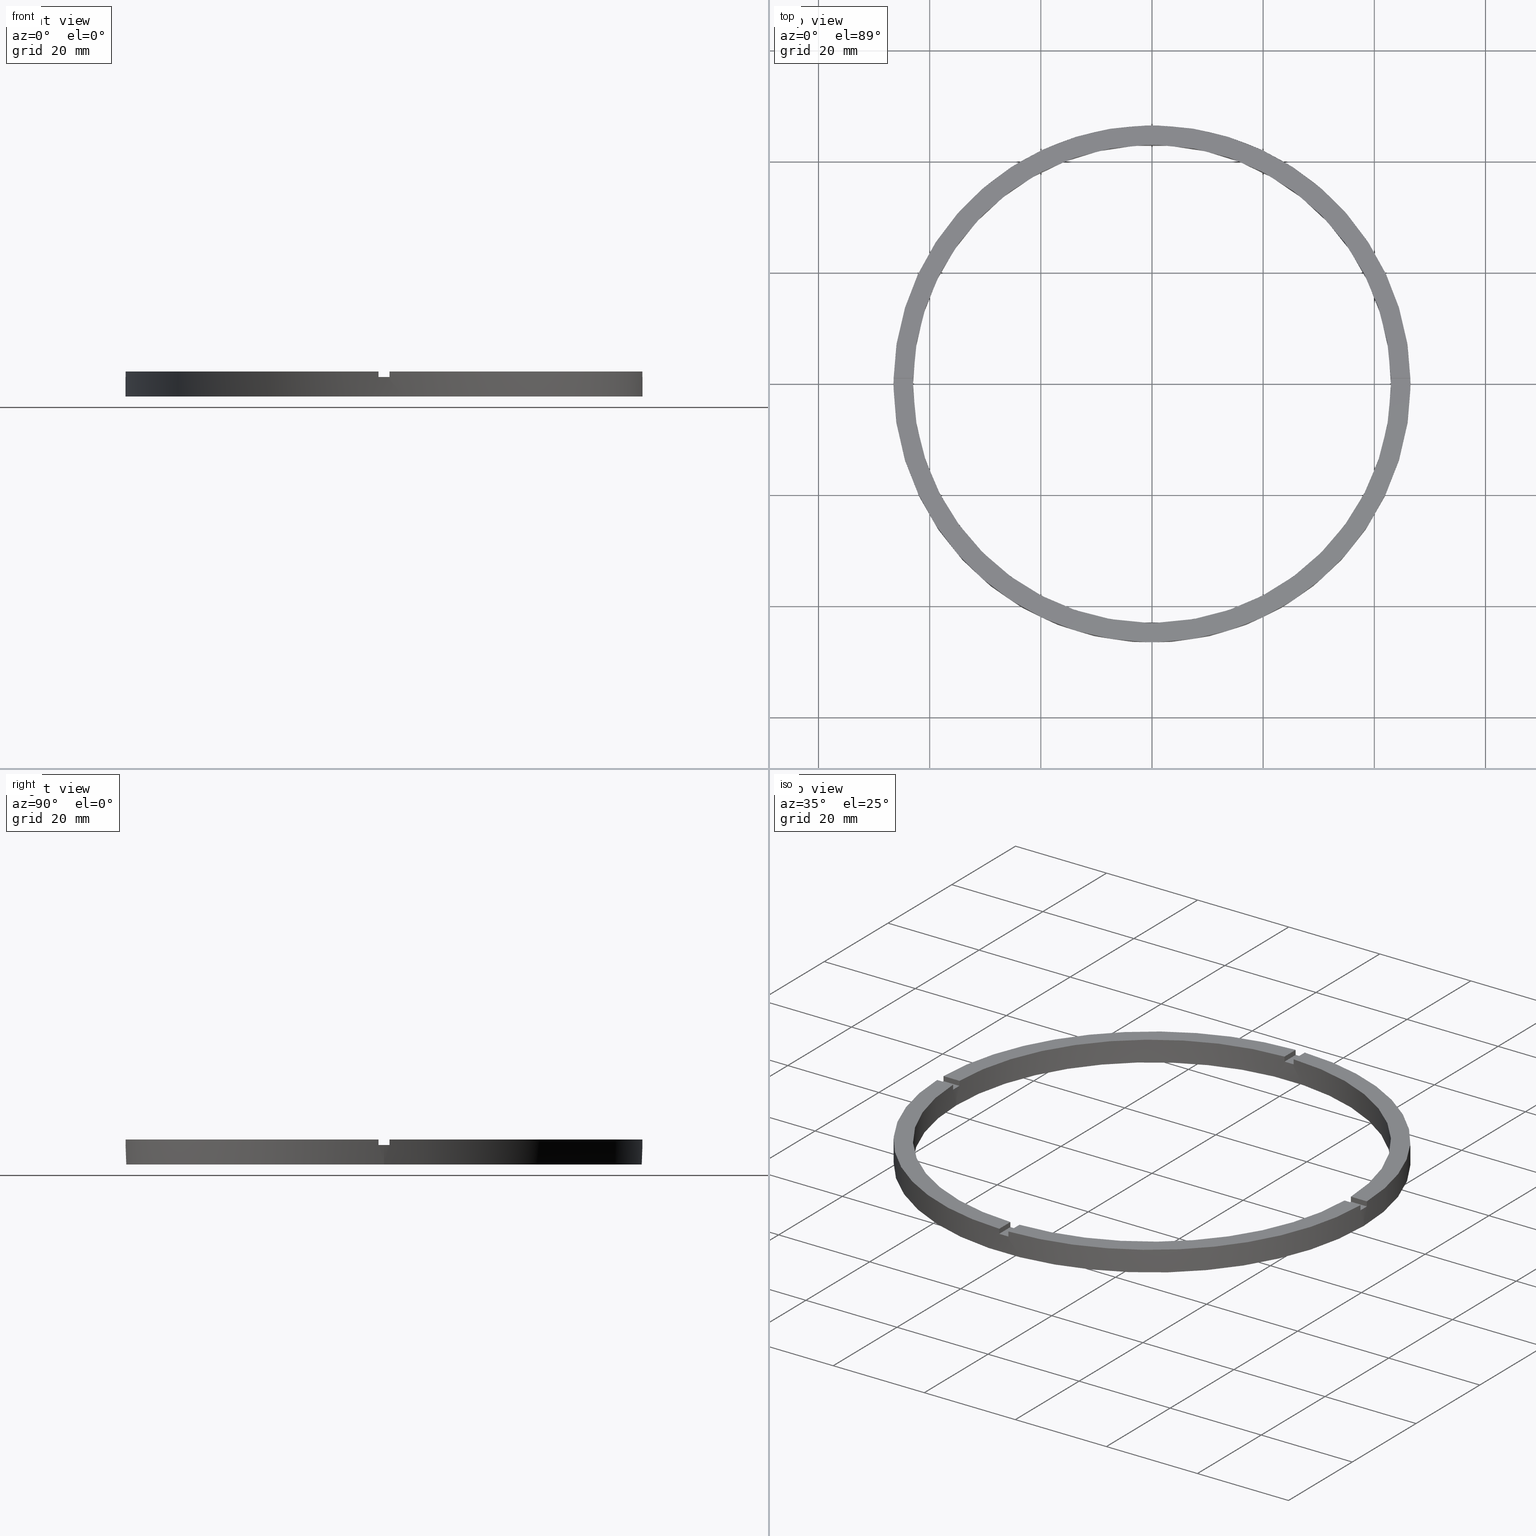
[diagram: canonical four-view strip — front | top / right | iso, engineering-drawing reading convention]
A machine part, canonical four-view strip (front | top / right | iso — engineering-drawing reading convention). The complete STEP part file that produces these views, byte-faithful:
ISO-10303-21;
HEADER;
FILE_DESCRIPTION (( 'STEP AP203' ),
    '1' );
FILE_NAME ('514191.step',
    '2024-12-26T02:46:27',
    ( 'MSI' ),
    ( '' ),
    'SwSTEP 2.0',
    'SolidWorks 2020',
    '' );
FILE_SCHEMA (( 'CONFIG_CONTROL_DESIGN' ));
ENDSEC;

DATA;
#1 = LINE ( 'NONE', #82, #757 ) ;
#2 = LINE ( 'NONE', #264, #262 ) ;
#3 = CC_DESIGN_APPROVAL ( #347, ( #295 ) ) ;
#4 = EDGE_CURVE ( 'NONE', #382, #200, #763, .T. ) ;
#5 = DIRECTION ( 'NONE',  ( 0.000000000000000000, 0.000000000000000000, 1.000000000000000000 ) ) ;
#6 = PERSON_AND_ORGANIZATION ( #259, #282 ) ;
#7 = AXIS2_PLACEMENT_3D ( 'NONE', #27, #577, #335 ) ;
#8 = APPROVAL_ROLE ( '' ) ;
#9 = ADVANCED_FACE ( 'NONE', ( #242 ), #267, .F. ) ;
#10 = MECHANICAL_CONTEXT ( 'NONE', #433, 'mechanical' ) ;
#11 = DATE_TIME_ROLE ( 'classification_date' ) ;
#12 = DIRECTION ( 'NONE',  ( -0.000000000000000000, -0.000000000000000000, -1.000000000000000000 ) ) ;
#13 = ADVANCED_FACE ( 'NONE', ( #239 ), #431, .F. ) ;
#14 = DIRECTION ( 'NONE',  ( -1.000000000000000000, -6.505213034913025371E-17, 0.000000000000000000 ) ) ;
#15 = PERSON_AND_ORGANIZATION ( #259, #282 ) ;
#16 = AXIS2_PLACEMENT_3D ( 'NONE', #166, #415, #495 ) ;
#17 = COORDINATED_UNIVERSAL_TIME_OFFSET ( 8, 0, .AHEAD. ) ;
#18 = APPROVAL_DATE_TIME ( #564, #347 ) ;
#19 = COORDINATED_UNIVERSAL_TIME_OFFSET ( 8, 0, .AHEAD. ) ;
#20 = EDGE_CURVE ( 'NONE', #169, #748, #2, .T. ) ;
#21 = DIRECTION ( 'NONE',  ( -0.000000000000000000, -1.000000000000000000, -0.000000000000000000 ) ) ;
#22 = EDGE_CURVE ( 'NONE', #644, #416, #246, .T. ) ;
#23 = APPROVAL_ROLE ( '' ) ;
#24 = LOCAL_TIME ( 10, 46, 27.00000000000000000, #538 ) ;
#25 = CARTESIAN_POINT ( 'NONE',  ( -1.000000000000158984, -36.50000000000017764, 3.499999999999999556 ) ) ;
#26 = CARTESIAN_POINT ( 'NONE',  ( -46.50000000000000000, 0.000000000000000000, 0.000000000000000000 ) ) ;
#27 = CARTESIAN_POINT ( 'NONE',  ( 0.000000000000000000, 0.000000000000000000, 3.499999999999999556 ) ) ;
#28 = LOCAL_TIME ( 10, 46, 27.00000000000000000, #17 ) ;
#29 = PERSON_AND_ORGANIZATION ( #259, #282 ) ;
#30 = CARTESIAN_POINT ( 'NONE',  ( -36.50000000000018474, 0.9999999999999715783, 3.499999999999999556 ) ) ;
#31 = CARTESIAN_POINT ( 'NONE',  ( 42.98837052040935447, 0.9999999999998439026, 3.499999999999999556 ) ) ;
#32 = CC_DESIGN_SECURITY_CLASSIFICATION ( #540, ( #378 ) ) ;
#33 = EDGE_CURVE ( 'NONE', #198, #627, #518, .T. ) ;
#34 = DIRECTION ( 'NONE',  ( -0.000000000000000000, -0.000000000000000000, -1.000000000000000000 ) ) ;
#35 = EDGE_CURVE ( 'NONE', #400, #198, #250, .T. ) ;
#36 = DIRECTION ( 'NONE',  ( -0.000000000000000000, -0.000000000000000000, -1.000000000000000000 ) ) ;
#37 = DIRECTION ( 'NONE',  ( 6.505213034913025371E-17, -1.000000000000000000, 0.000000000000000000 ) ) ;
#38 = PLANE ( 'NONE',  #726 ) ;
#39 = CARTESIAN_POINT ( 'NONE',  ( 0.9999999999999735767, 36.50000000000000000, 4.500000000000000000 ) ) ;
#40 = CARTESIAN_POINT ( 'NONE',  ( 46.48924606831132422, -1.000000000000155875, 3.499999999999999556 ) ) ;
#41 = DIRECTION ( 'NONE',  ( -1.000000000000000000, -6.505213034913025371E-17, -0.000000000000000000 ) ) ;
#42 = CARTESIAN_POINT ( 'NONE',  ( -46.48924606831132422, -1.000000000000030420, 4.500000000000000000 ) ) ;
#43 = AXIS2_PLACEMENT_3D ( 'NONE', #186, #611, #270 ) ;
#44 = CARTESIAN_POINT ( 'NONE',  ( -46.48924606831132422, -1.000000000000030420, 3.499999999999999556 ) ) ;
#45 = COORDINATED_UNIVERSAL_TIME_OFFSET ( 8, 0, .AHEAD. ) ;
#46 = APPROVAL_PERSON_ORGANIZATION ( #29, #668, #8 ) ;
#47 = AXIS2_PLACEMENT_3D ( 'NONE', #323, #450, #531 ) ;
#48 = LOCAL_TIME ( 10, 46, 27.00000000000000000, #45 ) ;
#49 = DIRECTION ( 'NONE',  ( -0.000000000000000000, -0.000000000000000000, -1.000000000000000000 ) ) ;
#50 = CALENDAR_DATE ( 2024, 26, 12 ) ;
#51 = EDGE_CURVE ( 'NONE', #180, #416, #496, .T. ) ;
#52 = PLANE ( 'NONE',  #586 ) ;
#53 = CARTESIAN_POINT ( 'NONE',  ( 0.000000000000000000, 0.000000000000000000, 4.500000000000000000 ) ) ;
#54 = DIRECTION ( 'NONE',  ( -1.000000000000000000, 0.000000000000000000, 0.000000000000000000 ) ) ;
#55 = DIRECTION ( 'NONE',  ( 1.000000000000000000, 0.000000000000000000, 0.000000000000000000 ) ) ;
#56 = EDGE_CURVE ( 'NONE', #400, #390, #525, .T. ) ;
#57 = EDGE_CURVE ( 'NONE', #193, #403, #524, .T. ) ;
#58 = CARTESIAN_POINT ( 'NONE',  ( 0.000000000000000000, 0.000000000000000000, 4.500000000000000000 ) ) ;
#59 = CARTESIAN_POINT ( 'NONE',  ( 46.48924606831132422, 0.9999999999998441247, 4.500000000000000000 ) ) ;
#60 = FACE_OUTER_BOUND ( 'NONE', #718, .T. ) ;
#61 = PLANE ( 'NONE',  #620 ) ;
#62 = DIRECTION ( 'NONE',  ( -0.000000000000000000, -0.000000000000000000, -1.000000000000000000 ) ) ;
#63 = CC_DESIGN_PERSON_AND_ORGANIZATION_ASSIGNMENT ( #548, #318, ( #295 ) ) ;
#64 = CARTESIAN_POINT ( 'NONE',  ( 0.000000000000000000, 0.000000000000000000, 3.499999999999999556 ) ) ;
#65 = CIRCLE ( 'NONE', #597, 46.50000000000000000 ) ;
#66 = FACE_OUTER_BOUND ( 'NONE', #675, .T. ) ;
#67 = APPROVAL_STATUS ( 'not_yet_approved' ) ;
#68 = AXIS2_PLACEMENT_3D ( 'NONE', #25, #130, #756 ) ;
#69 = CIRCLE ( 'NONE', #83, 46.50000000000000000 ) ;
#70 = VECTOR ( 'NONE', #292, 1000.000000000000000 ) ;
#71 = CARTESIAN_POINT ( 'NONE',  ( 0.9999999999999735767, 36.50000000000000000, 3.499999999999999556 ) ) ;
#72 = CIRCLE ( 'NONE', #772, 46.50000000000000000 ) ;
#73 = ADVANCED_FACE ( 'NONE', ( #263 ), #552, .F. ) ;
#74 = EDGE_CURVE ( 'NONE', #212, #748, #764, .T. ) ;
#75 = DIRECTION ( 'NONE',  ( 0.000000000000000000, 0.000000000000000000, 1.000000000000000000 ) ) ;
#76 = DIRECTION ( 'NONE',  ( 0.000000000000000000, 0.000000000000000000, 1.000000000000000000 ) ) ;
#77 = CARTESIAN_POINT ( 'NONE',  ( 0.000000000000000000, 0.000000000000000000, 0.000000000000000000 ) ) ;
#78 = EDGE_CURVE ( 'NONE', #201, #169, #519, .T. ) ;
#79 = EDGE_CURVE ( 'NONE', #622, #749, #759, .T. ) ;
#80 = DIRECTION ( 'NONE',  ( 0.000000000000000000, 0.000000000000000000, 1.000000000000000000 ) ) ;
#81 = DIRECTION ( 'NONE',  ( -1.000000000000000000, -1.951563910473907735E-16, 0.000000000000000000 ) ) ;
#82 = CARTESIAN_POINT ( 'NONE',  ( -42.98837052040935447, -1.000000000000029754, 4.500000000000000000 ) ) ;
#83 = AXIS2_PLACEMENT_3D ( 'NONE', #77, #144, #225 ) ;
#84 = EDGE_CURVE ( 'NONE', #646, #96, #511, .T. ) ;
#85 = CARTESIAN_POINT ( 'NONE',  ( 42.98837052040934736, -1.000000000000156097, 4.500000000000000000 ) ) ;
#86 = DIRECTION ( 'NONE',  ( 0.000000000000000000, 0.000000000000000000, 1.000000000000000000 ) ) ;
#87 = EDGE_CURVE ( 'NONE', #132, #108, #499, .T. ) ;
#88 = CARTESIAN_POINT ( 'NONE',  ( 0.9999999999999735767, 42.98837052040935447, 4.500000000000000000 ) ) ;
#89 = CARTESIAN_POINT ( 'NONE',  ( -1.000000000000157652, -46.48924606831132422, 4.500000000000000000 ) ) ;
#90 = DIRECTION ( 'NONE',  ( -0.000000000000000000, -1.000000000000000000, -0.000000000000000000 ) ) ;
#91 = AXIS2_PLACEMENT_3D ( 'NONE', #398, #294, #462 ) ;
#92 = ORIENTED_EDGE ( 'NONE', *, *, #562, .F. ) ;
#93 = AXIS2_PLACEMENT_3D ( 'NONE', #142, #281, #331 ) ;
#94 = VECTOR ( 'NONE', #530, 1000.000000000000000 ) ;
#95 = PLANE ( 'NONE',  #497 ) ;
#96 = VERTEX_POINT ( 'NONE', #40 ) ;
#97 = FACE_OUTER_BOUND ( 'NONE', #461, .T. ) ;
#98 = VERTEX_POINT ( 'NONE', #527 ) ;
#99 = DIRECTION ( 'NONE',  ( 0.000000000000000000, 0.000000000000000000, 1.000000000000000000 ) ) ;
#100 = EDGE_CURVE ( 'NONE', #98, #108, #1, .T. ) ;
#101 = ORIENTED_EDGE ( 'NONE', *, *, #562, .T. ) ;
#102 = DIRECTION ( 'NONE',  ( 1.951563910473907735E-16, -1.000000000000000000, 0.000000000000000000 ) ) ;
#103 = AXIS2_PLACEMENT_3D ( 'NONE', #241, #99, #760 ) ;
#104 = CARTESIAN_POINT ( 'NONE',  ( -43.00000000000000000, 0.000000000000000000, 4.500000000000000000 ) ) ;
#105 = LINE ( 'NONE', #293, #641 ) ;
#106 = ORIENTED_EDGE ( 'NONE', *, *, #437, .T. ) ;
#107 = EDGE_CURVE ( 'NONE', #149, #719, #237, .T. ) ;
#108 = VERTEX_POINT ( 'NONE', #689 ) ;
#109 = CYLINDRICAL_SURFACE ( 'NONE', #615, 46.50000000000000000 ) ;
#110 = ORIENTED_EDGE ( 'NONE', *, *, #57, .F. ) ;
#111 = ORIENTED_EDGE ( 'NONE', *, *, #407, .F. ) ;
#112 = EDGE_CURVE ( 'NONE', #96, #644, #249, .T. ) ;
#113 = LINE ( 'NONE', #155, #213 ) ;
#114 = DIRECTION ( 'NONE',  ( 1.301042606982605074E-16, -1.000000000000000000, 0.000000000000000000 ) ) ;
#115 = ORIENTED_EDGE ( 'NONE', *, *, #320, .T. ) ;
#116 = EDGE_LOOP ( 'NONE', ( #218, #405, #481, #106 ) ) ;
#117 = VERTEX_POINT ( 'NONE', #762 ) ;
#118 = FACE_OUTER_BOUND ( 'NONE', #370, .T. ) ;
#119 = ADVANCED_FACE ( 'NONE', ( #774 ), #157, .F. ) ;
#120 = ORIENTED_EDGE ( 'NONE', *, *, #84, .T. ) ;
#121 = ORIENTED_EDGE ( 'NONE', *, *, #656, .T. ) ;
#122 = CC_DESIGN_APPROVAL ( #668, ( #378 ) ) ;
#123 = DIRECTION ( 'NONE',  ( 1.000000000000000000, 0.000000000000000000, 0.000000000000000000 ) ) ;
#124 = DIRECTION ( 'NONE',  ( 0.000000000000000000, -0.000000000000000000, 1.000000000000000000 ) ) ;
#125 = ORIENTED_EDGE ( 'NONE', *, *, #197, .F. ) ;
#126 = CARTESIAN_POINT ( 'NONE',  ( -42.98837052040935447, 0.9999999999999703570, 4.500000000000000000 ) ) ;
#127 = ORIENTED_EDGE ( 'NONE', *, *, #547, .T. ) ;
#128 = CARTESIAN_POINT ( 'NONE',  ( 36.49999999999999289, 0.9999999999998434586, 3.499999999999999556 ) ) ;
#129 = EDGE_LOOP ( 'NONE', ( #356, #638, #182, #92 ) ) ;
#130 = DIRECTION ( 'NONE',  ( -1.000000000000000000, -1.301042606982605074E-16, 0.000000000000000000 ) ) ;
#131 = AXIS2_PLACEMENT_3D ( 'NONE', #585, #134, #697 ) ;
#132 = VERTEX_POINT ( 'NONE', #44 ) ;
#133 = DIRECTION ( 'NONE',  ( -0.000000000000000000, -0.000000000000000000, -1.000000000000000000 ) ) ;
#134 = DIRECTION ( 'NONE',  ( 0.000000000000000000, 0.000000000000000000, 1.000000000000000000 ) ) ;
#135 = CC_DESIGN_PERSON_AND_ORGANIZATION_ASSIGNMENT ( #15, #513, ( #534 ) ) ;
#136 = ORIENTED_EDGE ( 'NONE', *, *, #660, .T. ) ;
#137 = CARTESIAN_POINT ( 'NONE',  ( 46.48924606831132422, 0.9999999999998441247, 3.499999999999999556 ) ) ;
#138 = DIRECTION ( 'NONE',  ( -0.000000000000000000, -0.000000000000000000, -1.000000000000000000 ) ) ;
#139 = DIRECTION ( 'NONE',  ( 0.000000000000000000, 1.000000000000000000, 0.000000000000000000 ) ) ;
#140 = ORIENTED_EDGE ( 'NONE', *, *, #746, .T. ) ;
#141 = ORIENTED_EDGE ( 'NONE', *, *, #618, .T. ) ;
#142 = CARTESIAN_POINT ( 'NONE',  ( 0.000000000000000000, 0.000000000000000000, 4.500000000000000000 ) ) ;
#143 = ORIENTED_EDGE ( 'NONE', *, *, #33, .T. ) ;
#144 = DIRECTION ( 'NONE',  ( 0.000000000000000000, 0.000000000000000000, 1.000000000000000000 ) ) ;
#145 = ORIENTED_EDGE ( 'NONE', *, *, #555, .T. ) ;
#146 = DIRECTION ( 'NONE',  ( 1.000000000000000000, 0.000000000000000000, 0.000000000000000000 ) ) ;
#147 = AXIS2_PLACEMENT_3D ( 'NONE', #575, #775, #232 ) ;
#148 = ORIENTED_EDGE ( 'NONE', *, *, #245, .F. ) ;
#149 = VERTEX_POINT ( 'NONE', #517 ) ;
#150 = EDGE_CURVE ( 'NONE', #193, #382, #514, .T. ) ;
#151 = CARTESIAN_POINT ( 'NONE',  ( 0.9999999999999735767, 42.98837052040935447, 3.499999999999999556 ) ) ;
#152 = EDGE_CURVE ( 'NONE', #180, #190, #254, .T. ) ;
#153 = ORIENTED_EDGE ( 'NONE', *, *, #57, .T. ) ;
#154 = DIRECTION ( 'NONE',  ( 0.000000000000000000, 0.000000000000000000, 1.000000000000000000 ) ) ;
#155 = CARTESIAN_POINT ( 'NONE',  ( 0.9999999999998423483, -46.48924606831132422, 4.500000000000000000 ) ) ;
#156 = ORIENTED_EDGE ( 'NONE', *, *, #78, .T. ) ;
#157 = PLANE ( 'NONE',  #91 ) ;
#158 = ORIENTED_EDGE ( 'NONE', *, *, #112, .T. ) ;
#159 = ORIENTED_EDGE ( 'NONE', *, *, #248, .T. ) ;
#160 = CARTESIAN_POINT ( 'NONE',  ( 0.000000000000000000, 0.000000000000000000, 0.000000000000000000 ) ) ;
#161 = CC_DESIGN_APPROVAL ( #217, ( #540 ) ) ;
#162 = EDGE_CURVE ( 'NONE', #190, #749, #782, .T. ) ;
#163 = CARTESIAN_POINT ( 'NONE',  ( 0.000000000000000000, 0.000000000000000000, 3.499999999999999556 ) ) ;
#164 = ORIENTED_EDGE ( 'NONE', *, *, #455, .F. ) ;
#165 = LINE ( 'NONE', #526, #464 ) ;
#166 = CARTESIAN_POINT ( 'NONE',  ( 0.000000000000000000, 0.000000000000000000, 4.500000000000000000 ) ) ;
#167 = VECTOR ( 'NONE', #90, 1000.000000000000000 ) ;
#168 = CARTESIAN_POINT ( 'NONE',  ( -1.000000000000158984, -36.50000000000017764, 3.499999999999999556 ) ) ;
#169 = VERTEX_POINT ( 'NONE', #619 ) ;
#170 = VECTOR ( 'NONE', #36, 1000.000000000000000 ) ;
#171 = ORIENTED_EDGE ( 'NONE', *, *, #660, .F. ) ;
#172 = DIRECTION ( 'NONE',  ( 1.000000000000000000, 1.951563910473907735E-16, 0.000000000000000000 ) ) ;
#173 = ADVANCED_FACE ( 'NONE', ( #776, #767 ), #436, .F. ) ;
#174 = AXIS2_PLACEMENT_3D ( 'NONE', #451, #289, #469 ) ;
#175 = ORIENTED_EDGE ( 'NONE', *, *, #56, .T. ) ;
#176 = FACE_OUTER_BOUND ( 'NONE', #621, .T. ) ;
#177 = DIRECTION ( 'NONE',  ( 1.301042606982605074E-16, -1.000000000000000000, 0.000000000000000000 ) ) ;
#178 = VERTEX_POINT ( 'NONE', #211 ) ;
#179 = LINE ( 'NONE', #275, #170 ) ;
#180 = VERTEX_POINT ( 'NONE', #274 ) ;
#181 = LINE ( 'NONE', #39, #452 ) ;
#182 = ORIENTED_EDGE ( 'NONE', *, *, #547, .F. ) ;
#183 = CARTESIAN_POINT ( 'NONE',  ( 0.000000000000000000, 0.000000000000000000, 4.500000000000000000 ) ) ;
#184 = ORIENTED_EDGE ( 'NONE', *, *, #624, .F. ) ;
#185 = VECTOR ( 'NONE', #678, 1000.000000000000000 ) ;
#186 = CARTESIAN_POINT ( 'NONE',  ( 0.9999999999998411271, -36.50000000000017764, 3.499999999999999556 ) ) ;
#187 = ORIENTED_EDGE ( 'NONE', *, *, #271, .F. ) ;
#188 = EDGE_LOOP ( 'NONE', ( #223, #492, #159, #476, #224, #736, #238, #156, #203, #501, #688, #691 ) ) ;
#189 = ORIENTED_EDGE ( 'NONE', *, *, #112, .F. ) ;
#190 = VERTEX_POINT ( 'NONE', #389 ) ;
#191 = AXIS2_PLACEMENT_3D ( 'NONE', #412, #493, #404 ) ;
#192 = DIRECTION ( 'NONE',  ( 0.000000000000000000, 0.000000000000000000, 1.000000000000000000 ) ) ;
#193 = VERTEX_POINT ( 'NONE', #228 ) ;
#194 = CIRCLE ( 'NONE', #174, 46.50000000000000000 ) ;
#195 = ORIENTED_EDGE ( 'NONE', *, *, #283, .T. ) ;
#196 = EDGE_LOOP ( 'NONE', ( #426, #229, #233, #421 ) ) ;
#197 = EDGE_CURVE ( 'NONE', #646, #622, #252, .T. ) ;
#198 = VERTEX_POINT ( 'NONE', #632 ) ;
#199 = VECTOR ( 'NONE', #396, 1000.000000000000000 ) ;
#200 = VERTEX_POINT ( 'NONE', #443 ) ;
#201 = VERTEX_POINT ( 'NONE', #286 ) ;
#202 = LINE ( 'NONE', #204, #185 ) ;
#203 = ORIENTED_EDGE ( 'NONE', *, *, #349, .F. ) ;
#204 = CARTESIAN_POINT ( 'NONE',  ( 46.48924606831132422, -1.000000000000155875, 4.500000000000000000 ) ) ;
#205 = CIRCLE ( 'NONE', #643, 43.00000000000000000 ) ;
#206 = ORIENTED_EDGE ( 'NONE', *, *, #197, .T. ) ;
#207 = CARTESIAN_POINT ( 'NONE',  ( 46.50000000000000000, 5.694607616035192278E-15, 4.500000000000000000 ) ) ;
#208 = FACE_OUTER_BOUND ( 'NONE', #116, .T. ) ;
#209 = DIRECTION ( 'NONE',  ( -0.000000000000000000, 0.000000000000000000, 1.000000000000000000 ) ) ;
#210 = ORIENTED_EDGE ( 'NONE', *, *, #107, .T. ) ;
#211 = CARTESIAN_POINT ( 'NONE',  ( 0.9999999999999735767, 46.48924606831132422, 3.499999999999999556 ) ) ;
#212 = VERTEX_POINT ( 'NONE', #151 ) ;
#213 = VECTOR ( 'NONE', #133, 1000.000000000000000 ) ;
#214 = ORIENTED_EDGE ( 'NONE', *, *, #616, .T. ) ;
#215 = PLANE ( 'NONE',  #351 ) ;
#216 = CYLINDRICAL_SURFACE ( 'NONE', #47, 43.00000000000000000 ) ;
#217 = APPROVAL ( #427, 'δָ��' ) ;
#218 = ORIENTED_EDGE ( 'NONE', *, *, #349, .T. ) ;
#219 = ORIENTED_EDGE ( 'NONE', *, *, #283, .F. ) ;
#220 =( LENGTH_UNIT ( ) NAMED_UNIT ( * ) SI_UNIT ( .MILLI., .METRE. ) );
#221 = DIRECTION ( 'NONE',  ( 1.000000000000000000, 0.000000000000000000, 0.000000000000000000 ) ) ;
#222 = ORIENTED_EDGE ( 'NONE', *, *, #56, .F. ) ;
#223 = ORIENTED_EDGE ( 'NONE', *, *, #22, .F. ) ;
#224 = ORIENTED_EDGE ( 'NONE', *, *, #107, .F. ) ;
#225 = DIRECTION ( 'NONE',  ( 1.000000000000000000, 0.000000000000000000, 0.000000000000000000 ) ) ;
#226 = CARTESIAN_POINT ( 'NONE',  ( -1.000000000000026423, 36.50000000000000000, 4.500000000000000000 ) ) ;
#227 = EDGE_LOOP ( 'NONE', ( #214, #635, #725, #724 ) ) ;
#228 = CARTESIAN_POINT ( 'NONE',  ( -42.98837052040935447, 0.9999999999999703570, 3.499999999999999556 ) ) ;
#229 = ORIENTED_EDGE ( 'NONE', *, *, #305, .T. ) ;
#230 = ORIENTED_EDGE ( 'NONE', *, *, #579, .T. ) ;
#231 = PLANE ( 'NONE',  #316 ) ;
#232 = DIRECTION ( 'NONE',  ( -1.000000000000000000, 0.000000000000000000, 0.000000000000000000 ) ) ;
#233 = ORIENTED_EDGE ( 'NONE', *, *, #746, .F. ) ;
#234 = CARTESIAN_POINT ( 'NONE',  ( -36.50000000000018474, 0.9999999999999715783, 3.499999999999999556 ) ) ;
#235 = DIRECTION ( 'NONE',  ( -1.000000000000000000, 0.000000000000000000, 0.000000000000000000 ) ) ;
#236 = VECTOR ( 'NONE', #701, 1000.000000000000000 ) ;
#237 = CIRCLE ( 'NONE', #669, 46.50000000000000000 ) ;
#238 = ORIENTED_EDGE ( 'NONE', *, *, #305, .F. ) ;
#239 = FACE_OUTER_BOUND ( 'NONE', #129, .T. ) ;
#240 = DIRECTION ( 'NONE',  ( 0.000000000000000000, 0.000000000000000000, 1.000000000000000000 ) ) ;
#241 = CARTESIAN_POINT ( 'NONE',  ( 0.000000000000000000, 0.000000000000000000, 4.500000000000000000 ) ) ;
#242 = FACE_OUTER_BOUND ( 'NONE', #424, .T. ) ;
#243 = DIRECTION ( 'NONE',  ( -0.000000000000000000, -0.000000000000000000, -1.000000000000000000 ) ) ;
#244 = VECTOR ( 'NONE', #658, 1000.000000000000000 ) ;
#245 = EDGE_CURVE ( 'NONE', #178, #117, #509, .T. ) ;
#246 = CIRCLE ( 'NONE', #266, 46.50000000000000000 ) ;
#247 = ORIENTED_EDGE ( 'NONE', *, *, #406, .T. ) ;
#248 = EDGE_CURVE ( 'NONE', #465, #490, #778, .T. ) ;
#249 = CIRCLE ( 'NONE', #637, 46.50000000000000000 ) ;
#250 = LINE ( 'NONE', #546, #503 ) ;
#251 = ADVANCED_FACE ( 'NONE', ( #516 ), #52, .T. ) ;
#252 = CIRCLE ( 'NONE', #607, 43.00000000000000000 ) ;
#253 = VECTOR ( 'NONE', #177, 1000.000000000000000 ) ;
#254 = LINE ( 'NONE', #472, #500 ) ;
#255 = VECTOR ( 'NONE', #62, 1000.000000000000000 ) ;
#256 = LINE ( 'NONE', #702, #520 ) ;
#257 = CC_DESIGN_PERSON_AND_ORGANIZATION_ASSIGNMENT ( #313, #741, ( #378 ) ) ;
#258 = EDGE_CURVE ( 'NONE', #727, #132, #256, .T. ) ;
#259 = PERSON ( 'δָ��', 'δָ��', 'δָ��', ('δָ��'), ('δָ��'), ('δָ��') ) ;
#260 = VECTOR ( 'NONE', #154, 1000.000000000000000 ) ;
#261 = EDGE_LOOP ( 'NONE', ( #164, #429 ) ) ;
#262 = VECTOR ( 'NONE', #21, 1000.000000000000000 ) ;
#263 = FACE_OUTER_BOUND ( 'NONE', #650, .T. ) ;
#264 = CARTESIAN_POINT ( 'NONE',  ( -1.000000000000026423, 36.50000000000000000, 3.499999999999999556 ) ) ;
#265 = ORIENTED_EDGE ( 'NONE', *, *, #399, .T. ) ;
#266 = AXIS2_PLACEMENT_3D ( 'NONE', #491, #750, #321 ) ;
#267 = PLANE ( 'NONE',  #720 ) ;
#268 = AXIS2_PLACEMENT_3D ( 'NONE', #30, #695, #81 ) ;
#269 = DIRECTION ( 'NONE',  ( 0.000000000000000000, 1.000000000000000000, 0.000000000000000000 ) ) ;
#270 = DIRECTION ( 'NONE',  ( -1.301042606982605074E-16, 1.000000000000000000, 0.000000000000000000 ) ) ;
#271 = EDGE_CURVE ( 'NONE', #390, #627, #783, .T. ) ;
#272 = EDGE_CURVE ( 'NONE', #193, #149, #522, .T. ) ;
#273 = CARTESIAN_POINT ( 'NONE',  ( 43.00000000000000000, 5.265981236333618470E-15, 4.500000000000000000 ) ) ;
#274 = CARTESIAN_POINT ( 'NONE',  ( 46.48924606831132422, 0.9999999999998441247, 4.500000000000000000 ) ) ;
#275 = CARTESIAN_POINT ( 'NONE',  ( -46.50000000000000000, 0.000000000000000000, 4.500000000000000000 ) ) ;
#276 = AXIS2_PLACEMENT_3D ( 'NONE', #758, #80, #617 ) ;
#277 = DIRECTION ( 'NONE',  ( -1.301042606982605074E-16, 1.000000000000000000, -0.000000000000000000 ) ) ;
#278 = CARTESIAN_POINT ( 'NONE',  ( 0.000000000000000000, 0.000000000000000000, 4.500000000000000000 ) ) ;
#279 = CARTESIAN_POINT ( 'NONE',  ( 0.9999999999998423483, -46.48924606831132422, 4.500000000000000000 ) ) ;
#280 = APPROVAL_DATE_TIME ( #536, #217 ) ;
#281 = DIRECTION ( 'NONE',  ( 0.000000000000000000, 0.000000000000000000, 1.000000000000000000 ) ) ;
#282 = ORGANIZATION ( 'δָ��', 'δָ��', '' ) ;
#283 = EDGE_CURVE ( 'NONE', #390, #483, #587, .T. ) ;
#284 = CARTESIAN_POINT ( 'NONE',  ( 46.50000000000000000, 5.694607616035192278E-15, 0.000000000000000000 ) ) ;
#285 = CARTESIAN_POINT ( 'NONE',  ( 42.98837052040934736, -1.000000000000156097, 3.499999999999999556 ) ) ;
#286 = CARTESIAN_POINT ( 'NONE',  ( -1.000000000000026423, 46.48924606831132422, 4.500000000000000000 ) ) ;
#287 = CARTESIAN_POINT ( 'NONE',  ( 36.49999999999999289, -1.000000000000156541, 3.499999999999999556 ) ) ;
#288 = DIRECTION ( 'NONE',  ( -0.000000000000000000, -0.000000000000000000, -1.000000000000000000 ) ) ;
#289 = DIRECTION ( 'NONE',  ( 0.000000000000000000, 0.000000000000000000, 1.000000000000000000 ) ) ;
#290 = AXIS2_PLACEMENT_3D ( 'NONE', #160, #657, #343 ) ;
#291 = LOCAL_TIME ( 10, 46, 27.00000000000000000, #19 ) ;
#292 = DIRECTION ( 'NONE',  ( -1.000000000000000000, -1.951563910473907735E-16, 0.000000000000000000 ) ) ;
#293 = CARTESIAN_POINT ( 'NONE',  ( 36.49999999999999289, 0.9999999999998434586, 3.499999999999999556 ) ) ;
#294 = DIRECTION ( 'NONE',  ( -1.000000000000000000, 0.000000000000000000, 0.000000000000000000 ) ) ;
#295 = PRODUCT_DEFINITION ( 'δ֪', '', #378, #614 ) ;
#296 = CALENDAR_DATE ( 2024, 26, 12 ) ;
#297 = DIRECTION ( 'NONE',  ( 1.000000000000000000, 0.000000000000000000, -0.000000000000000000 ) ) ;
#298 = DIRECTION ( 'NONE',  ( 0.000000000000000000, 0.000000000000000000, 1.000000000000000000 ) ) ;
#299 = DIRECTION ( 'NONE',  ( -0.000000000000000000, 0.000000000000000000, 1.000000000000000000 ) ) ;
#300 = PERSON_AND_ORGANIZATION ( #259, #282 ) ;
#301 = CARTESIAN_POINT ( 'NONE',  ( 0.9999999999999735767, 42.98837052040935447, 4.500000000000000000 ) ) ;
#302 = ADVANCED_FACE ( 'NONE', ( #60 ), #61, .F. ) ;
#303 = APPROVAL_PERSON_ORGANIZATION ( #300, #347, #23 ) ;
#304 = AXIS2_PLACEMENT_3D ( 'NONE', #600, #298, #346 ) ;
#305 = EDGE_CURVE ( 'NONE', #201, #739, #578, .T. ) ;
#306 = APPROVAL_DATE_TIME ( #308, #668 ) ;
#307 = CARTESIAN_POINT ( 'NONE',  ( -42.98837052040935447, 0.9999999999999703570, 4.500000000000000000 ) ) ;
#308 = DATE_AND_TIME ( #311, #48 ) ;
#309 = EDGE_CURVE ( 'NONE', #413, #411, #336, .T. ) ;
#310 = ADVANCED_FACE ( 'NONE', ( #66 ), #317, .F. ) ;
#311 = CALENDAR_DATE ( 2024, 26, 12 ) ;
#312 = CARTESIAN_POINT ( 'NONE',  ( 0.000000000000000000, 0.000000000000000000, 4.500000000000000000 ) ) ;
#313 = PERSON_AND_ORGANIZATION ( #259, #282 ) ;
#314 = DATE_AND_TIME ( #50, #569 ) ;
#315 = DIRECTION ( 'NONE',  ( 0.000000000000000000, 0.000000000000000000, -1.000000000000000000 ) ) ;
#316 = AXIS2_PLACEMENT_3D ( 'NONE', #287, #37, #466 ) ;
#317 = CYLINDRICAL_SURFACE ( 'NONE', #692, 43.00000000000000000 ) ;
#318 = PERSON_AND_ORGANIZATION_ROLE ( 'creator' ) ;
#319 = VECTOR ( 'NONE', #243, 1000.000000000000000 ) ;
#320 = EDGE_CURVE ( 'NONE', #180, #117, #581, .T. ) ;
#321 = DIRECTION ( 'NONE',  ( 1.000000000000000000, 0.000000000000000000, 0.000000000000000000 ) ) ;
#322 = CARTESIAN_POINT ( 'NONE',  ( 0.000000000000000000, 0.000000000000000000, 3.499999999999999556 ) ) ;
#323 = CARTESIAN_POINT ( 'NONE',  ( 0.000000000000000000, 0.000000000000000000, 4.500000000000000000 ) ) ;
#324 = CARTESIAN_POINT ( 'NONE',  ( -46.48924606831132422, 0.9999999999999696909, 4.500000000000000000 ) ) ;
#325 = LINE ( 'NONE', #504, #319 ) ;
#326 = CARTESIAN_POINT ( 'NONE',  ( 0.000000000000000000, 0.000000000000000000, 3.499999999999999556 ) ) ;
#327 = CIRCLE ( 'NONE', #276, 43.00000000000000000 ) ;
#328 = DIRECTION ( 'NONE',  ( 1.000000000000000000, 0.000000000000000000, 0.000000000000000000 ) ) ;
#329 = FACE_OUTER_BOUND ( 'NONE', #372, .T. ) ;
#330 = CARTESIAN_POINT ( 'NONE',  ( 0.9999999999999735767, 36.50000000000000000, 3.499999999999999556 ) ) ;
#331 = DIRECTION ( 'NONE',  ( 1.000000000000000000, 0.000000000000000000, -0.000000000000000000 ) ) ;
#332 = VECTOR ( 'NONE', #269, 1000.000000000000000 ) ;
#333 = AXIS2_PLACEMENT_3D ( 'NONE', #652, #717, #55 ) ;
#334 = VECTOR ( 'NONE', #367, 1000.000000000000000 ) ;
#335 = DIRECTION ( 'NONE',  ( 1.000000000000000000, 0.000000000000000000, 0.000000000000000000 ) ) ;
#336 = LINE ( 'NONE', #544, #595 ) ;
#337 = EDGE_CURVE ( 'NONE', #681, #403, #583, .T. ) ;
#338 = CIRCLE ( 'NONE', #333, 43.00000000000000000 ) ;
#339 = PERSON_AND_ORGANIZATION_ROLE ( 'design_supplier' ) ;
#340 = CARTESIAN_POINT ( 'NONE',  ( -36.50000000000018474, -1.000000000000028422, 4.500000000000000000 ) ) ;
#341 = CARTESIAN_POINT ( 'NONE',  ( 36.49999999999999289, -1.000000000000156541, 3.499999999999999556 ) ) ;
#342 = AXIS2_PLACEMENT_3D ( 'NONE', #498, #192, #609 ) ;
#343 = DIRECTION ( 'NONE',  ( 1.000000000000000000, 0.000000000000000000, 0.000000000000000000 ) ) ;
#344 = DIRECTION ( 'NONE',  ( 0.000000000000000000, -0.000000000000000000, 1.000000000000000000 ) ) ;
#345 = CC_DESIGN_DATE_AND_TIME_ASSIGNMENT ( #314, #11, ( #540 ) ) ;
#346 = DIRECTION ( 'NONE',  ( 1.000000000000000000, 0.000000000000000000, -0.000000000000000000 ) ) ;
#347 = APPROVAL ( #67, 'δָ��' ) ;
#348 = CARTESIAN_POINT ( 'NONE',  ( -43.00000000000000000, 0.000000000000000000, 3.499999999999999556 ) ) ;
#349 = EDGE_CURVE ( 'NONE', #178, #169, #591, .T. ) ;
#350 = CARTESIAN_POINT ( 'NONE',  ( -1.000000000000157652, -46.48924606831132422, 3.499999999999999556 ) ) ;
#351 = AXIS2_PLACEMENT_3D ( 'NONE', #322, #684, #328 ) ;
#352 = DIRECTION ( 'NONE',  ( 1.000000000000000000, 0.000000000000000000, 0.000000000000000000 ) ) ;
#353 = CARTESIAN_POINT ( 'NONE',  ( 0.000000000000000000, 0.000000000000000000, 3.499999999999999556 ) ) ;
#354 = ORIENTED_EDGE ( 'NONE', *, *, #541, .T. ) ;
#355 = DIRECTION ( 'NONE',  ( 0.000000000000000000, -0.000000000000000000, 1.000000000000000000 ) ) ;
#356 = ORIENTED_EDGE ( 'NONE', *, *, #428, .T. ) ;
#357 = LINE ( 'NONE', #207, #94 ) ;
#358 = AXIS2_PLACEMENT_3D ( 'NONE', #312, #729, #123 ) ;
#359 = ADVANCED_FACE ( 'NONE', ( #593 ), #95, .T. ) ;
#360 = ORIENTED_EDGE ( 'NONE', *, *, #777, .F. ) ;
#361 = DIRECTION ( 'NONE',  ( 1.000000000000000000, 0.000000000000000000, 0.000000000000000000 ) ) ;
#362 = FACE_OUTER_BOUND ( 'NONE', #196, .T. ) ;
#363 = EDGE_CURVE ( 'NONE', #728, #408, #325, .T. ) ;
#364 = DIRECTION ( 'NONE',  ( 1.000000000000000000, 0.000000000000000000, 0.000000000000000000 ) ) ;
#365 = FACE_OUTER_BOUND ( 'NONE', #188, .T. ) ;
#366 = ORIENTED_EDGE ( 'NONE', *, *, #258, .T. ) ;
#367 = DIRECTION ( 'NONE',  ( -0.000000000000000000, -0.000000000000000000, -1.000000000000000000 ) ) ;
#368 = ORIENTED_EDGE ( 'NONE', *, *, #407, .T. ) ;
#369 = DIRECTION ( 'NONE',  ( 1.000000000000000000, 0.000000000000000000, 0.000000000000000000 ) ) ;
#370 = EDGE_LOOP ( 'NONE', ( #698, #189, #136, #445, #101, #219, #485, #397, #366, #111, #447, #730 ) ) ;
#371 = ORIENTED_EDGE ( 'NONE', *, *, #272, .T. ) ;
#372 = EDGE_LOOP ( 'NONE', ( #439, #419, #671, #171 ) ) ;
#373 = EDGE_LOOP ( 'NONE', ( #360, #666, #742, #115 ) ) ;
#374 = DIRECTION ( 'NONE',  ( 0.000000000000000000, 0.000000000000000000, 1.000000000000000000 ) ) ;
#375 = DIRECTION ( 'NONE',  ( -1.000000000000000000, -1.951563910473907735E-16, 0.000000000000000000 ) ) ;
#376 = CLOSED_SHELL ( 'NONE', ( #605, #558, #545, #679, #512, #251, #173, #551, #310, #302, #563, #505, #13, #672, #654, #9, #409, #359, #119, #73, #613 ) ) ;
#377 = EDGE_LOOP ( 'NONE', ( #222, #670, #143, #187 ) ) ;
#378 = PRODUCT_DEFINITION_FORMATION_WITH_SPECIFIED_SOURCE ( '�κ�', '', #534, .NOT_KNOWN. ) ;
#379 = AXIS2_PLACEMENT_3D ( 'NONE', #71, #606, #315 ) ;
#380 = DIRECTION ( 'NONE',  ( 0.000000000000000000, 0.000000000000000000, 1.000000000000000000 ) ) ;
#381 = CARTESIAN_POINT ( 'NONE',  ( 0.000000000000000000, 0.000000000000000000, 0.000000000000000000 ) ) ;
#382 = VERTEX_POINT ( 'NONE', #348 ) ;
#383 = AXIS2_PLACEMENT_3D ( 'NONE', #529, #580, #628 ) ;
#384 = ORIENTED_EDGE ( 'NONE', *, *, #484, .F. ) ;
#385 = CARTESIAN_POINT ( 'NONE',  ( -1.000000000000026423, 42.98837052040935447, 4.500000000000000000 ) ) ;
#386 = CARTESIAN_POINT ( 'NONE',  ( 0.9999999999998423483, -46.48924606831132422, 3.499999999999999556 ) ) ;
#387 = DIRECTION ( 'NONE',  ( 0.000000000000000000, 0.000000000000000000, 1.000000000000000000 ) ) ;
#388 =( NAMED_UNIT ( * ) PLANE_ANGLE_UNIT ( ) SI_UNIT ( $, .RADIAN. ) );
#389 = CARTESIAN_POINT ( 'NONE',  ( 42.98837052040935447, 0.9999999999998439026, 4.500000000000000000 ) ) ;
#390 = VERTEX_POINT ( 'NONE', #350 ) ;
#391 = ORIENTED_EDGE ( 'NONE', *, *, #735, .T. ) ;
#392 =( GEOMETRIC_REPRESENTATION_CONTEXT ( 3 ) GLOBAL_UNCERTAINTY_ASSIGNED_CONTEXT ( ( #636 ) ) GLOBAL_UNIT_ASSIGNED_CONTEXT ( ( #220, #388, #584 ) ) REPRESENTATION_CONTEXT ( 'NONE', 'WORKASPACE' ) );
#393 = CARTESIAN_POINT ( 'NONE',  ( -1.000000000000158096, -42.98837052040934736, 3.499999999999999556 ) ) ;
#394 = ORIENTED_EDGE ( 'NONE', *, *, #309, .F. ) ;
#395 = CARTESIAN_POINT ( 'NONE',  ( 0.000000000000000000, 0.000000000000000000, 3.499999999999999556 ) ) ;
#396 = DIRECTION ( 'NONE',  ( 1.000000000000000000, 1.951563910473907735E-16, -0.000000000000000000 ) ) ;
#397 = ORIENTED_EDGE ( 'NONE', *, *, #731, .F. ) ;
#398 = CARTESIAN_POINT ( 'NONE',  ( -1.000000000000026423, 36.50000000000000000, 3.499999999999999556 ) ) ;
#399 = EDGE_CURVE ( 'NONE', #715, #411, #72, .T. ) ;
#400 = VERTEX_POINT ( 'NONE', #393 ) ;
#401 = ORIENTED_EDGE ( 'NONE', *, *, #541, .F. ) ;
#402 = ORIENTED_EDGE ( 'NONE', *, *, #656, .F. ) ;
#403 = VERTEX_POINT ( 'NONE', #126 ) ;
#404 = DIRECTION ( 'NONE',  ( 1.000000000000000000, 0.000000000000000000, -0.000000000000000000 ) ) ;
#405 = ORIENTED_EDGE ( 'NONE', *, *, #20, .T. ) ;
#406 = EDGE_CURVE ( 'NONE', #382, #108, #327, .T. ) ;
#407 = EDGE_CURVE ( 'NONE', #719, #132, #65, .T. ) ;
#408 = VERTEX_POINT ( 'NONE', #766 ) ;
#409 = ADVANCED_FACE ( 'NONE', ( #329 ), #231, .F. ) ;
#410 = DIRECTION ( 'NONE',  ( 0.000000000000000000, 0.000000000000000000, 1.000000000000000000 ) ) ;
#411 = VERTEX_POINT ( 'NONE', #535 ) ;
#412 = CARTESIAN_POINT ( 'NONE',  ( 0.000000000000000000, 0.000000000000000000, 4.500000000000000000 ) ) ;
#413 = VERTEX_POINT ( 'NONE', #680 ) ;
#414 = ORIENTED_EDGE ( 'NONE', *, *, #87, .T. ) ;
#415 = DIRECTION ( 'NONE',  ( 0.000000000000000000, 0.000000000000000000, 1.000000000000000000 ) ) ;
#416 = VERTEX_POINT ( 'NONE', #137 ) ;
#417 = CARTESIAN_POINT ( 'NONE',  ( -1.000000000000158984, -36.50000000000017764, 4.500000000000000000 ) ) ;
#418 = ORIENTED_EDGE ( 'NONE', *, *, #51, .F. ) ;
#419 = ORIENTED_EDGE ( 'NONE', *, *, #603, .T. ) ;
#420 = DIRECTION ( 'NONE',  ( 1.000000000000000000, 0.000000000000000000, 0.000000000000000000 ) ) ;
#421 = ORIENTED_EDGE ( 'NONE', *, *, #337, .F. ) ;
#422 = AXIS2_PLACEMENT_3D ( 'NONE', #381, #446, #456 ) ;
#423 = DIRECTION ( 'NONE',  ( 1.000000000000000000, 0.000000000000000000, -0.000000000000000000 ) ) ;
#424 = EDGE_LOOP ( 'NONE', ( #659, #449, #442, #418 ) ) ;
#425 = DIRECTION ( 'NONE',  ( 0.000000000000000000, 0.000000000000000000, 1.000000000000000000 ) ) ;
#426 = ORIENTED_EDGE ( 'NONE', *, *, #616, .F. ) ;
#427 = APPROVAL_STATUS ( 'not_yet_approved' ) ;
#428 = EDGE_CURVE ( 'NONE', #715, #728, #598, .T. ) ;
#429 = ORIENTED_EDGE ( 'NONE', *, *, #248, .F. ) ;
#430 = CARTESIAN_POINT ( 'NONE',  ( 0.000000000000000000, 0.000000000000000000, 3.499999999999999556 ) ) ;
#431 = PLANE ( 'NONE',  #43 ) ;
#432 = LINE ( 'NONE', #226, #167 ) ;
#433 = APPLICATION_CONTEXT ( 'configuration controlled 3d designs of mechanical parts and assemblies' ) ;
#434 = ORIENTED_EDGE ( 'NONE', *, *, #731, .T. ) ;
#435 = CIRCLE ( 'NONE', #422, 43.00000000000000000 ) ;
#436 = PLANE ( 'NONE',  #131 ) ;
#437 = EDGE_CURVE ( 'NONE', #212, #178, #599, .T. ) ;
#438 = ORIENTED_EDGE ( 'NONE', *, *, #100, .T. ) ;
#439 = ORIENTED_EDGE ( 'NONE', *, *, #84, .F. ) ;
#440 = ORIENTED_EDGE ( 'NONE', *, *, #4, .T. ) ;
#441 = CARTESIAN_POINT ( 'NONE',  ( 0.9999999999998411271, -36.50000000000017764, 3.499999999999999556 ) ) ;
#442 = ORIENTED_EDGE ( 'NONE', *, *, #555, .F. ) ;
#443 = CARTESIAN_POINT ( 'NONE',  ( -43.00000000000000000, 0.000000000000000000, 0.000000000000000000 ) ) ;
#444 = AXIS2_PLACEMENT_3D ( 'NONE', #64, #299, #361 ) ;
#445 = ORIENTED_EDGE ( 'NONE', *, *, #399, .F. ) ;
#446 = DIRECTION ( 'NONE',  ( 0.000000000000000000, 0.000000000000000000, 1.000000000000000000 ) ) ;
#447 = ORIENTED_EDGE ( 'NONE', *, *, #647, .T. ) ;
#448 = FACE_OUTER_BOUND ( 'NONE', #377, .T. ) ;
#449 = ORIENTED_EDGE ( 'NONE', *, *, #162, .T. ) ;
#450 = DIRECTION ( 'NONE',  ( -0.000000000000000000, -0.000000000000000000, -1.000000000000000000 ) ) ;
#451 = CARTESIAN_POINT ( 'NONE',  ( 0.000000000000000000, 0.000000000000000000, 4.500000000000000000 ) ) ;
#452 = VECTOR ( 'NONE', #139, 1000.000000000000000 ) ;
#453 = CC_DESIGN_PERSON_AND_ORGANIZATION_ASSIGNMENT ( #567, #339, ( #378 ) ) ;
#454 = CARTESIAN_POINT ( 'NONE',  ( 0.000000000000000000, 0.000000000000000000, 3.499999999999999556 ) ) ;
#455 = EDGE_CURVE ( 'NONE', #490, #465, #69, .T. ) ;
#456 = DIRECTION ( 'NONE',  ( 1.000000000000000000, 0.000000000000000000, 0.000000000000000000 ) ) ;
#457 = ORIENTED_EDGE ( 'NONE', *, *, #258, .F. ) ;
#458 = LINE ( 'NONE', #340, #199 ) ;
#459 = CARTESIAN_POINT ( 'NONE',  ( -1.000000000000026423, 42.98837052040935447, 4.500000000000000000 ) ) ;
#460 = ORIENTED_EDGE ( 'NONE', *, *, #579, .F. ) ;
#461 = EDGE_LOOP ( 'NONE', ( #210, #368, #414, #690, #486, #371 ) ) ;
#462 = DIRECTION ( 'NONE',  ( 0.000000000000000000, 0.000000000000000000, 1.000000000000000000 ) ) ;
#463 = ORIENTED_EDGE ( 'NONE', *, *, #533, .F. ) ;
#464 = VECTOR ( 'NONE', #375, 1000.000000000000000 ) ;
#465 = VERTEX_POINT ( 'NONE', #284 ) ;
#466 = DIRECTION ( 'NONE',  ( 1.000000000000000000, 6.505213034913025371E-17, 0.000000000000000000 ) ) ;
#467 = ORIENTED_EDGE ( 'NONE', *, *, #337, .T. ) ;
#468 = DIRECTION ( 'NONE',  ( 1.000000000000000000, 0.000000000000000000, -0.000000000000000000 ) ) ;
#469 = DIRECTION ( 'NONE',  ( 1.000000000000000000, 0.000000000000000000, 0.000000000000000000 ) ) ;
#470 = AXIS2_PLACEMENT_3D ( 'NONE', #353, #124, #420 ) ;
#471 = ORIENTED_EDGE ( 'NONE', *, *, #683, .T. ) ;
#472 = CARTESIAN_POINT ( 'NONE',  ( 36.49999999999999289, 0.9999999999998434586, 4.500000000000000000 ) ) ;
#473 = FACE_OUTER_BOUND ( 'NONE', #639, .T. ) ;
#474 = ORIENTED_EDGE ( 'NONE', *, *, #4, .F. ) ;
#475 = LINE ( 'NONE', #273, #482 ) ;
#476 = ORIENTED_EDGE ( 'NONE', *, *, #647, .F. ) ;
#477 = CIRCLE ( 'NONE', #713, 43.00000000000000000 ) ;
#478 = ORIENTED_EDGE ( 'NONE', *, *, #162, .F. ) ;
#479 = CARTESIAN_POINT ( 'NONE',  ( 43.00000000000000000, 5.265981236333618470E-15, 3.499999999999999556 ) ) ;
#480 = LINE ( 'NONE', #85, #732 ) ;
#481 = ORIENTED_EDGE ( 'NONE', *, *, #74, .F. ) ;
#482 = VECTOR ( 'NONE', #138, 1000.000000000000000 ) ;
#483 = VERTEX_POINT ( 'NONE', #386 ) ;
#484 = EDGE_CURVE ( 'NONE', #681, #748, #601, .T. ) ;
#485 = ORIENTED_EDGE ( 'NONE', *, *, #271, .T. ) ;
#486 = ORIENTED_EDGE ( 'NONE', *, *, #150, .F. ) ;
#487 = PLANE ( 'NONE',  #103 ) ;
#488 = ORIENTED_EDGE ( 'NONE', *, *, #35, .F. ) ;
#489 = VERTEX_POINT ( 'NONE', #754 ) ;
#490 = VERTEX_POINT ( 'NONE', #26 ) ;
#491 = CARTESIAN_POINT ( 'NONE',  ( 0.000000000000000000, 0.000000000000000000, 3.499999999999999556 ) ) ;
#492 = ORIENTED_EDGE ( 'NONE', *, *, #494, .T. ) ;
#493 = DIRECTION ( 'NONE',  ( 0.000000000000000000, 0.000000000000000000, 1.000000000000000000 ) ) ;
#494 = EDGE_CURVE ( 'NONE', #644, #465, #357, .T. ) ;
#495 = DIRECTION ( 'NONE',  ( 1.000000000000000000, 0.000000000000000000, 0.000000000000000000 ) ) ;
#496 = LINE ( 'NONE', #59, #244 ) ;
#497 = AXIS2_PLACEMENT_3D ( 'NONE', #163, #737, #423 ) ;
#498 = CARTESIAN_POINT ( 'NONE',  ( 0.000000000000000000, 0.000000000000000000, 4.500000000000000000 ) ) ;
#499 = LINE ( 'NONE', #532, #765 ) ;
#500 = VECTOR ( 'NONE', #781, 1000.000000000000000 ) ;
#501 = ORIENTED_EDGE ( 'NONE', *, *, #245, .T. ) ;
#502 = PRODUCT_RELATED_PRODUCT_CATEGORY ( 'detail', '', ( #534 ) ) ;
#503 = VECTOR ( 'NONE', #425, 1000.000000000000000 ) ;
#504 = CARTESIAN_POINT ( 'NONE',  ( 0.9999999999998419042, -42.98837052040935447, 4.500000000000000000 ) ) ;
#505 = ADVANCED_FACE ( 'NONE', ( #97 ), #773, .T. ) ;
#506 = DIRECTION ( 'NONE',  ( -0.000000000000000000, -0.000000000000000000, -1.000000000000000000 ) ) ;
#507 = VECTOR ( 'NONE', #34, 1000.000000000000000 ) ;
#508 = APPROVAL_ROLE ( '' ) ;
#509 = LINE ( 'NONE', #523, #515 ) ;
#510 = VECTOR ( 'NONE', #114, 1000.000000000000000 ) ;
#511 = LINE ( 'NONE', #341, #236 ) ;
#512 = ADVANCED_FACE ( 'NONE', ( #629 ), #543, .T. ) ;
#513 = PERSON_AND_ORGANIZATION_ROLE ( 'design_owner' ) ;
#514 = CIRCLE ( 'NONE', #7, 43.00000000000000000 ) ;
#515 = VECTOR ( 'NONE', #410, 1000.000000000000000 ) ;
#516 = FACE_OUTER_BOUND ( 'NONE', #673, .T. ) ;
#517 = CARTESIAN_POINT ( 'NONE',  ( -46.48924606831132422, 0.9999999999999696909, 3.499999999999999556 ) ) ;
#518 = LINE ( 'NONE', #417, #510 ) ;
#519 = LINE ( 'NONE', #556, #771 ) ;
#520 = VECTOR ( 'NONE', #779, 1000.000000000000000 ) ;
#521 = CARTESIAN_POINT ( 'NONE',  ( -46.48924606831132422, 0.9999999999999696909, 4.500000000000000000 ) ) ;
#522 = LINE ( 'NONE', #234, #70 ) ;
#523 = CARTESIAN_POINT ( 'NONE',  ( 0.9999999999999735767, 46.48924606831132422, 4.500000000000000000 ) ) ;
#524 = LINE ( 'NONE', #307, #755 ) ;
#525 = LINE ( 'NONE', #168, #253 ) ;
#526 = CARTESIAN_POINT ( 'NONE',  ( -36.50000000000018474, 0.9999999999999715783, 4.500000000000000000 ) ) ;
#527 = CARTESIAN_POINT ( 'NONE',  ( -42.98837052040935447, -1.000000000000029754, 4.500000000000000000 ) ) ;
#528 = PRODUCT_DEFINITION_SHAPE ( 'NONE', 'NONE',  #295 ) ;
#529 = CARTESIAN_POINT ( 'NONE',  ( 0.000000000000000000, 0.000000000000000000, 4.500000000000000000 ) ) ;
#530 = DIRECTION ( 'NONE',  ( -0.000000000000000000, -0.000000000000000000, -1.000000000000000000 ) ) ;
#531 = DIRECTION ( 'NONE',  ( -1.000000000000000000, 0.000000000000000000, 0.000000000000000000 ) ) ;
#532 = CARTESIAN_POINT ( 'NONE',  ( -36.50000000000018474, -1.000000000000028422, 3.499999999999999556 ) ) ;
#533 = EDGE_CURVE ( 'NONE', #200, #489, #338, .T. ) ;
#534 = PRODUCT ( '514191', '514191', '', ( #10 ) ) ;
#535 = CARTESIAN_POINT ( 'NONE',  ( 46.48924606831132422, -1.000000000000155875, 4.500000000000000000 ) ) ;
#536 = DATE_AND_TIME ( #554, #24 ) ;
#537 = DIRECTION ( 'NONE',  ( 1.000000000000000000, 1.951563910473907735E-16, -0.000000000000000000 ) ) ;
#538 = COORDINATED_UNIVERSAL_TIME_OFFSET ( 8, 0, .AHEAD. ) ;
#539 = DIRECTION ( 'NONE',  ( 0.000000000000000000, 0.000000000000000000, 1.000000000000000000 ) ) ;
#540 = SECURITY_CLASSIFICATION ( '', '', #566 ) ;
#541 = EDGE_CURVE ( 'NONE', #212, #712, #608, .T. ) ;
#542 = APPROVAL_PERSON_ORGANIZATION ( #6, #217, #508 ) ;
#543 = PLANE ( 'NONE',  #191 ) ;
#544 = CARTESIAN_POINT ( 'NONE',  ( 36.49999999999999289, -1.000000000000156541, 4.500000000000000000 ) ) ;
#545 = ADVANCED_FACE ( 'NONE', ( #362 ), #487, .T. ) ;
#546 = CARTESIAN_POINT ( 'NONE',  ( -1.000000000000158096, -42.98837052040934736, 4.500000000000000000 ) ) ;
#547 = EDGE_CURVE ( 'NONE', #483, #408, #645, .T. ) ;
#548 = PERSON_AND_ORGANIZATION ( #259, #282 ) ;
#549 = SHAPE_DEFINITION_REPRESENTATION ( #528, #743 ) ;
#550 = AXIS2_PLACEMENT_3D ( 'NONE', #648, #374, #780 ) ;
#551 = ADVANCED_FACE ( 'NONE', ( #118 ), #631, .T. ) ;
#552 = PLANE ( 'NONE',  #379 ) ;
#553 = CALENDAR_DATE ( 2024, 26, 12 ) ;
#554 = CALENDAR_DATE ( 2024, 26, 12 ) ;
#555 = EDGE_CURVE ( 'NONE', #416, #749, #105, .T. ) ;
#556 = CARTESIAN_POINT ( 'NONE',  ( -1.000000000000026423, 46.48924606831132422, 4.500000000000000000 ) ) ;
#557 = DATE_AND_TIME ( #296, #291 ) ;
#558 = ADVANCED_FACE ( 'NONE', ( #365 ), #109, .T. ) ;
#559 = APPLICATION_PROTOCOL_DEFINITION ( 'international standard', 'config_control_design', 1994, #433 ) ;
#560 = AXIS2_PLACEMENT_3D ( 'NONE', #430, #355, #352 ) ;
#561 = CARTESIAN_POINT ( 'NONE',  ( 0.000000000000000000, 0.000000000000000000, 4.500000000000000000 ) ) ;
#562 = EDGE_CURVE ( 'NONE', #715, #483, #113, .T. ) ;
#563 = ADVANCED_FACE ( 'NONE', ( #473 ), #590, .F. ) ;
#564 = DATE_AND_TIME ( #553, #28 ) ;
#565 = CARTESIAN_POINT ( 'NONE',  ( 0.000000000000000000, 0.000000000000000000, 0.000000000000000000 ) ) ;
#566 = SECURITY_CLASSIFICATION_LEVEL ( 'unclassified' ) ;
#567 = PERSON_AND_ORGANIZATION ( #259, #282 ) ;
#568 = CARTESIAN_POINT ( 'NONE',  ( 0.000000000000000000, 0.000000000000000000, 3.499999999999999556 ) ) ;
#569 = LOCAL_TIME ( 10, 46, 27.00000000000000000, #571 ) ;
#570 = PERSON_AND_ORGANIZATION ( #259, #282 ) ;
#571 = COORDINATED_UNIVERSAL_TIME_OFFSET ( 8, 0, .AHEAD. ) ;
#572 = CARTESIAN_POINT ( 'NONE',  ( 46.50000000000000000, 5.694607616035192278E-15, 3.499999999999999556 ) ) ;
#573 = CARTESIAN_POINT ( 'NONE',  ( -46.50000000000000000, 0.000000000000000000, 3.499999999999999556 ) ) ;
#574 = CARTESIAN_POINT ( 'NONE',  ( 0.000000000000000000, 0.000000000000000000, 3.499999999999999556 ) ) ;
#575 = CARTESIAN_POINT ( 'NONE',  ( 0.000000000000000000, 0.000000000000000000, 4.500000000000000000 ) ) ;
#576 = VECTOR ( 'NONE', #277, 1000.000000000000000 ) ;
#577 = DIRECTION ( 'NONE',  ( 0.000000000000000000, 0.000000000000000000, 1.000000000000000000 ) ) ;
#578 = CIRCLE ( 'NONE', #358, 46.50000000000000000 ) ;
#579 = EDGE_CURVE ( 'NONE', #400, #408, #477, .T. ) ;
#580 = DIRECTION ( 'NONE',  ( 0.000000000000000000, 0.000000000000000000, 1.000000000000000000 ) ) ;
#581 = CIRCLE ( 'NONE', #342, 46.50000000000000000 ) ;
#582 = CARTESIAN_POINT ( 'NONE',  ( 0.000000000000000000, 0.000000000000000000, 3.499999999999999556 ) ) ;
#583 = CIRCLE ( 'NONE', #16, 43.00000000000000000 ) ;
#584 =( NAMED_UNIT ( * ) SI_UNIT ( $, .STERADIAN. ) SOLID_ANGLE_UNIT ( ) );
#585 = CARTESIAN_POINT ( 'NONE',  ( 0.000000000000000000, 0.000000000000000000, 0.000000000000000000 ) ) ;
#586 = AXIS2_PLACEMENT_3D ( 'NONE', #58, #240, #297 ) ;
#587 = CIRCLE ( 'NONE', #444, 46.50000000000000000 ) ;
#588 = DIRECTION ( 'NONE',  ( 1.000000000000000000, 0.000000000000000000, 0.000000000000000000 ) ) ;
#589 = EDGE_CURVE ( 'NONE', #98, #198, #205, .T. ) ;
#590 = PLANE ( 'NONE',  #268 ) ;
#591 = CIRCLE ( 'NONE', #560, 46.50000000000000000 ) ;
#592 = DIRECTION ( 'NONE',  ( 0.000000000000000000, 0.000000000000000000, 1.000000000000000000 ) ) ;
#593 = FACE_OUTER_BOUND ( 'NONE', #706, .T. ) ;
#594 = EDGE_CURVE ( 'NONE', #622, #489, #475, .T. ) ;
#595 = VECTOR ( 'NONE', #674, 1000.000000000000000 ) ;
#596 = DIRECTION ( 'NONE',  ( 0.000000000000000000, 0.000000000000000000, 1.000000000000000000 ) ) ;
#597 = AXIS2_PLACEMENT_3D ( 'NONE', #574, #693, #588 ) ;
#598 = LINE ( 'NONE', #640, #576 ) ;
#599 = LINE ( 'NONE', #330, #332 ) ;
#600 = CARTESIAN_POINT ( 'NONE',  ( 0.000000000000000000, 0.000000000000000000, 3.499999999999999556 ) ) ;
#601 = LINE ( 'NONE', #459, #334 ) ;
#602 = CC_DESIGN_PERSON_AND_ORGANIZATION_ASSIGNMENT ( #570, #753, ( #540 ) ) ;
#603 = EDGE_CURVE ( 'NONE', #646, #413, #480, .T. ) ;
#604 = DIRECTION ( 'NONE',  ( -6.505213034913025371E-17, 1.000000000000000000, 0.000000000000000000 ) ) ;
#605 = ADVANCED_FACE ( 'NONE', ( #738 ), #216, .F. ) ;
#606 = DIRECTION ( 'NONE',  ( 1.000000000000000000, -0.000000000000000000, 0.000000000000000000 ) ) ;
#607 = AXIS2_PLACEMENT_3D ( 'NONE', #326, #380, #146 ) ;
#608 = LINE ( 'NONE', #301, #634 ) ;
#609 = DIRECTION ( 'NONE',  ( 1.000000000000000000, 0.000000000000000000, 0.000000000000000000 ) ) ;
#610 = AXIS2_PLACEMENT_3D ( 'NONE', #565, #76, #364 ) ;
#611 = DIRECTION ( 'NONE',  ( 1.000000000000000000, 1.301042606982605074E-16, 0.000000000000000000 ) ) ;
#612 = DIRECTION ( 'NONE',  ( 0.000000000000000000, 0.000000000000000000, 1.000000000000000000 ) ) ;
#613 = ADVANCED_FACE ( 'NONE', ( #208 ), #38, .T. ) ;
#614 = DESIGN_CONTEXT ( 'detailed design', #677, 'design' ) ;
#615 = AXIS2_PLACEMENT_3D ( 'NONE', #53, #288, #235 ) ;
#616 = EDGE_CURVE ( 'NONE', #201, #681, #432, .T. ) ;
#617 = DIRECTION ( 'NONE',  ( 1.000000000000000000, 0.000000000000000000, 0.000000000000000000 ) ) ;
#618 = EDGE_CURVE ( 'NONE', #190, #712, #723, .T. ) ;
#619 = CARTESIAN_POINT ( 'NONE',  ( -1.000000000000026423, 46.48924606831132422, 3.499999999999999556 ) ) ;
#620 = AXIS2_PLACEMENT_3D ( 'NONE', #655, #102, #172 ) ;
#621 = EDGE_LOOP ( 'NONE', ( #195, #127, #460, #175 ) ) ;
#622 = VERTEX_POINT ( 'NONE', #479 ) ;
#623 = PLANE ( 'NONE',  #93 ) ;
#624 = EDGE_CURVE ( 'NONE', #149, #739, #704, .T. ) ;
#625 = CARTESIAN_POINT ( 'NONE',  ( 0.9999999999998419042, -42.98837052040935447, 4.500000000000000000 ) ) ;
#626 = CARTESIAN_POINT ( 'NONE',  ( 42.98837052040935447, 0.9999999999998439026, 4.500000000000000000 ) ) ;
#627 = VERTEX_POINT ( 'NONE', #710 ) ;
#628 = DIRECTION ( 'NONE',  ( 1.000000000000000000, 0.000000000000000000, 0.000000000000000000 ) ) ;
#629 = FACE_OUTER_BOUND ( 'NONE', #711, .T. ) ;
#630 = VECTOR ( 'NONE', #687, 1000.000000000000000 ) ;
#631 = CYLINDRICAL_SURFACE ( 'NONE', #147, 46.50000000000000000 ) ;
#632 = CARTESIAN_POINT ( 'NONE',  ( -1.000000000000158096, -42.98837052040934736, 4.500000000000000000 ) ) ;
#633 = ORIENTED_EDGE ( 'NONE', *, *, #589, .F. ) ;
#634 = VECTOR ( 'NONE', #5, 1000.000000000000000 ) ;
#635 = ORIENTED_EDGE ( 'NONE', *, *, #484, .T. ) ;
#636 = UNCERTAINTY_MEASURE_WITH_UNIT (LENGTH_MEASURE( 1.000000000000000082E-05 ), #220, 'distance_accuracy_value', 'NONE');
#637 = AXIS2_PLACEMENT_3D ( 'NONE', #454, #592, #369 ) ;
#638 = ORIENTED_EDGE ( 'NONE', *, *, #363, .T. ) ;
#639 = EDGE_LOOP ( 'NONE', ( #665, #153, #140, #184 ) ) ;
#640 = CARTESIAN_POINT ( 'NONE',  ( 0.9999999999998411271, -36.50000000000017764, 4.500000000000000000 ) ) ;
#641 = VECTOR ( 'NONE', #41, 1000.000000000000000 ) ;
#642 = ORIENTED_EDGE ( 'NONE', *, *, #150, .T. ) ;
#643 = AXIS2_PLACEMENT_3D ( 'NONE', #278, #387, #703 ) ;
#644 = VERTEX_POINT ( 'NONE', #572 ) ;
#645 = LINE ( 'NONE', #441, #630 ) ;
#646 = VERTEX_POINT ( 'NONE', #285 ) ;
#647 = EDGE_CURVE ( 'NONE', #719, #490, #179, .T. ) ;
#648 = CARTESIAN_POINT ( 'NONE',  ( 0.000000000000000000, 0.000000000000000000, 4.500000000000000000 ) ) ;
#649 = ORIENTED_EDGE ( 'NONE', *, *, #777, .T. ) ;
#650 = EDGE_LOOP ( 'NONE', ( #651, #354, #649, #148 ) ) ;
#651 = ORIENTED_EDGE ( 'NONE', *, *, #437, .F. ) ;
#652 = CARTESIAN_POINT ( 'NONE',  ( 0.000000000000000000, 0.000000000000000000, 0.000000000000000000 ) ) ;
#653 = ORIENTED_EDGE ( 'NONE', *, *, #79, .F. ) ;
#654 = ADVANCED_FACE ( 'NONE', ( #176 ), #215, .T. ) ;
#655 = CARTESIAN_POINT ( 'NONE',  ( -36.50000000000018474, -1.000000000000028422, 3.499999999999999556 ) ) ;
#656 = EDGE_CURVE ( 'NONE', #489, #200, #435, .T. ) ;
#657 = DIRECTION ( 'NONE',  ( 0.000000000000000000, 0.000000000000000000, 1.000000000000000000 ) ) ;
#658 = DIRECTION ( 'NONE',  ( -0.000000000000000000, -0.000000000000000000, -1.000000000000000000 ) ) ;
#659 = ORIENTED_EDGE ( 'NONE', *, *, #152, .T. ) ;
#660 = EDGE_CURVE ( 'NONE', #96, #411, #202, .T. ) ;
#661 = ORIENTED_EDGE ( 'NONE', *, *, #22, .T. ) ;
#662 = ORIENTED_EDGE ( 'NONE', *, *, #79, .T. ) ;
#663 = MANIFOLD_SOLID_BREP ( '�г�-����1', #376 ) ;
#664 = ORIENTED_EDGE ( 'NONE', *, *, #87, .F. ) ;
#665 = ORIENTED_EDGE ( 'NONE', *, *, #272, .F. ) ;
#666 = ORIENTED_EDGE ( 'NONE', *, *, #618, .F. ) ;
#667 = CARTESIAN_POINT ( 'NONE',  ( 0.000000000000000000, 0.000000000000000000, 3.499999999999999556 ) ) ;
#668 = APPROVAL ( #734, 'δָ��' ) ;
#669 = AXIS2_PLACEMENT_3D ( 'NONE', #568, #86, #221 ) ;
#670 = ORIENTED_EDGE ( 'NONE', *, *, #35, .T. ) ;
#671 = ORIENTED_EDGE ( 'NONE', *, *, #309, .T. ) ;
#672 = ADVANCED_FACE ( 'NONE', ( #448 ), #752, .F. ) ;
#673 = EDGE_LOOP ( 'NONE', ( #696, #633, #740, #434 ) ) ;
#674 = DIRECTION ( 'NONE',  ( 1.000000000000000000, 6.505213034913025371E-17, 0.000000000000000000 ) ) ;
#675 = EDGE_LOOP ( 'NONE', ( #707, #662, #478, #141, #401, #709, #384, #467, #110, #642, #440, #402 ) ) ;
#676 = AXIS2_PLACEMENT_3D ( 'NONE', #667, #769, #705 ) ;
#677 = APPLICATION_CONTEXT ( 'configuration controlled 3d designs of mechanical parts and assemblies' ) ;
#678 = DIRECTION ( 'NONE',  ( 0.000000000000000000, 0.000000000000000000, 1.000000000000000000 ) ) ;
#679 = ADVANCED_FACE ( 'NONE', ( #714 ), #623, .T. ) ;
#680 = CARTESIAN_POINT ( 'NONE',  ( 42.98837052040934736, -1.000000000000156097, 4.500000000000000000 ) ) ;
#681 = VERTEX_POINT ( 'NONE', #385 ) ;
#682 = EDGE_LOOP ( 'NONE', ( #206, #700, #463, #474, #247, #770, #744, #488, #230, #685, #471, #686 ) ) ;
#683 = EDGE_CURVE ( 'NONE', #728, #413, #716, .T. ) ;
#684 = DIRECTION ( 'NONE',  ( -0.000000000000000000, 0.000000000000000000, 1.000000000000000000 ) ) ;
#685 = ORIENTED_EDGE ( 'NONE', *, *, #363, .F. ) ;
#686 = ORIENTED_EDGE ( 'NONE', *, *, #603, .F. ) ;
#687 = DIRECTION ( 'NONE',  ( -1.301042606982605074E-16, 1.000000000000000000, -0.000000000000000000 ) ) ;
#688 = ORIENTED_EDGE ( 'NONE', *, *, #320, .F. ) ;
#689 = CARTESIAN_POINT ( 'NONE',  ( -42.98837052040935447, -1.000000000000029754, 3.499999999999999556 ) ) ;
#690 = ORIENTED_EDGE ( 'NONE', *, *, #406, .F. ) ;
#691 = ORIENTED_EDGE ( 'NONE', *, *, #51, .T. ) ;
#692 = AXIS2_PLACEMENT_3D ( 'NONE', #183, #12, #54 ) ;
#693 = DIRECTION ( 'NONE',  ( 0.000000000000000000, 0.000000000000000000, 1.000000000000000000 ) ) ;
#694 = ORIENTED_EDGE ( 'NONE', *, *, #428, .F. ) ;
#695 = DIRECTION ( 'NONE',  ( -1.951563910473907735E-16, 1.000000000000000000, 0.000000000000000000 ) ) ;
#696 = ORIENTED_EDGE ( 'NONE', *, *, #33, .F. ) ;
#697 = DIRECTION ( 'NONE',  ( 1.000000000000000000, 0.000000000000000000, -0.000000000000000000 ) ) ;
#698 = ORIENTED_EDGE ( 'NONE', *, *, #494, .F. ) ;
#699 = VECTOR ( 'NONE', #596, 1000.000000000000000 ) ;
#700 = ORIENTED_EDGE ( 'NONE', *, *, #594, .T. ) ;
#701 = DIRECTION ( 'NONE',  ( 1.000000000000000000, 6.505213034913025371E-17, 0.000000000000000000 ) ) ;
#702 = CARTESIAN_POINT ( 'NONE',  ( -46.48924606831132422, -1.000000000000030420, 4.500000000000000000 ) ) ;
#703 = DIRECTION ( 'NONE',  ( 1.000000000000000000, 0.000000000000000000, 0.000000000000000000 ) ) ;
#704 = LINE ( 'NONE', #521, #699 ) ;
#705 = DIRECTION ( 'NONE',  ( 1.000000000000000000, 0.000000000000000000, 0.000000000000000000 ) ) ;
#706 = EDGE_LOOP ( 'NONE', ( #158, #661, #145, #653, #125, #120 ) ) ;
#707 = ORIENTED_EDGE ( 'NONE', *, *, #594, .F. ) ;
#708 = CC_DESIGN_DATE_AND_TIME_ASSIGNMENT ( #557, #747, ( #295 ) ) ;
#709 = ORIENTED_EDGE ( 'NONE', *, *, #74, .T. ) ;
#710 = CARTESIAN_POINT ( 'NONE',  ( -1.000000000000157652, -46.48924606831132422, 4.500000000000000000 ) ) ;
#711 = EDGE_LOOP ( 'NONE', ( #394, #745, #694, #265 ) ) ;
#712 = VERTEX_POINT ( 'NONE', #88 ) ;
#713 = AXIS2_PLACEMENT_3D ( 'NONE', #395, #209, #768 ) ;
#714 = FACE_OUTER_BOUND ( 'NONE', #373, .T. ) ;
#715 = VERTEX_POINT ( 'NONE', #279 ) ;
#716 = CIRCLE ( 'NONE', #383, 43.00000000000000000 ) ;
#717 = DIRECTION ( 'NONE',  ( 0.000000000000000000, 0.000000000000000000, 1.000000000000000000 ) ) ;
#718 = EDGE_LOOP ( 'NONE', ( #391, #438, #664, #457 ) ) ;
#719 = VERTEX_POINT ( 'NONE', #573 ) ;
#720 = AXIS2_PLACEMENT_3D ( 'NONE', #128, #604, #14 ) ;
#721 = EDGE_LOOP ( 'NONE', ( #733, #121 ) ) ;
#722 = DIRECTION ( 'NONE',  ( 1.000000000000000000, 0.000000000000000000, 0.000000000000000000 ) ) ;
#723 = CIRCLE ( 'NONE', #550, 43.00000000000000000 ) ;
#724 = ORIENTED_EDGE ( 'NONE', *, *, #78, .F. ) ;
#725 = ORIENTED_EDGE ( 'NONE', *, *, #20, .F. ) ;
#726 = AXIS2_PLACEMENT_3D ( 'NONE', #582, #344, #468 ) ;
#727 = VERTEX_POINT ( 'NONE', #42 ) ;
#728 = VERTEX_POINT ( 'NONE', #625 ) ;
#729 = DIRECTION ( 'NONE',  ( 0.000000000000000000, 0.000000000000000000, 1.000000000000000000 ) ) ;
#730 = ORIENTED_EDGE ( 'NONE', *, *, #455, .T. ) ;
#731 = EDGE_CURVE ( 'NONE', #727, #627, #194, .T. ) ;
#732 = VECTOR ( 'NONE', #539, 1000.000000000000000 ) ;
#733 = ORIENTED_EDGE ( 'NONE', *, *, #533, .T. ) ;
#734 = APPROVAL_STATUS ( 'not_yet_approved' ) ;
#735 = EDGE_CURVE ( 'NONE', #727, #98, #458, .T. ) ;
#736 = ORIENTED_EDGE ( 'NONE', *, *, #624, .T. ) ;
#737 = DIRECTION ( 'NONE',  ( 0.000000000000000000, 0.000000000000000000, 1.000000000000000000 ) ) ;
#738 = FACE_OUTER_BOUND ( 'NONE', #682, .T. ) ;
#739 = VERTEX_POINT ( 'NONE', #324 ) ;
#740 = ORIENTED_EDGE ( 'NONE', *, *, #735, .F. ) ;
#741 = PERSON_AND_ORGANIZATION_ROLE ( 'creator' ) ;
#742 = ORIENTED_EDGE ( 'NONE', *, *, #152, .F. ) ;
#743 = ADVANCED_BREP_SHAPE_REPRESENTATION ( '514191', ( #663, #610 ), #392 ) ;
#744 = ORIENTED_EDGE ( 'NONE', *, *, #589, .T. ) ;
#745 = ORIENTED_EDGE ( 'NONE', *, *, #683, .F. ) ;
#746 = EDGE_CURVE ( 'NONE', #403, #739, #165, .T. ) ;
#747 = DATE_TIME_ROLE ( 'creation_date' ) ;
#748 = VERTEX_POINT ( 'NONE', #761 ) ;
#749 = VERTEX_POINT ( 'NONE', #31 ) ;
#750 = DIRECTION ( 'NONE',  ( 0.000000000000000000, 0.000000000000000000, 1.000000000000000000 ) ) ;
#751 = APPLICATION_PROTOCOL_DEFINITION ( 'international standard', 'config_control_design', 1994, #677 ) ;
#752 = PLANE ( 'NONE',  #68 ) ;
#753 = PERSON_AND_ORGANIZATION_ROLE ( 'classification_officer' ) ;
#754 = CARTESIAN_POINT ( 'NONE',  ( 43.00000000000000000, 5.265981236333618470E-15, 0.000000000000000000 ) ) ;
#755 = VECTOR ( 'NONE', #75, 1000.000000000000000 ) ;
#756 = DIRECTION ( 'NONE',  ( 1.301042606982605074E-16, -1.000000000000000000, 0.000000000000000000 ) ) ;
#757 = VECTOR ( 'NONE', #49, 1000.000000000000000 ) ;
#758 = CARTESIAN_POINT ( 'NONE',  ( 0.000000000000000000, 0.000000000000000000, 3.499999999999999556 ) ) ;
#759 = CIRCLE ( 'NONE', #676, 43.00000000000000000 ) ;
#760 = DIRECTION ( 'NONE',  ( 1.000000000000000000, 0.000000000000000000, -0.000000000000000000 ) ) ;
#761 = CARTESIAN_POINT ( 'NONE',  ( -1.000000000000026423, 42.98837052040935447, 3.499999999999999556 ) ) ;
#762 = CARTESIAN_POINT ( 'NONE',  ( 0.9999999999999735767, 46.48924606831132422, 4.500000000000000000 ) ) ;
#763 = LINE ( 'NONE', #104, #255 ) ;
#764 = CIRCLE ( 'NONE', #470, 43.00000000000000000 ) ;
#765 = VECTOR ( 'NONE', #537, 1000.000000000000000 ) ;
#766 = CARTESIAN_POINT ( 'NONE',  ( 0.9999999999998419042, -42.98837052040935447, 3.499999999999999556 ) ) ;
#767 = FACE_BOUND ( 'NONE', #721, .T. ) ;
#768 = DIRECTION ( 'NONE',  ( 1.000000000000000000, 0.000000000000000000, 0.000000000000000000 ) ) ;
#769 = DIRECTION ( 'NONE',  ( 0.000000000000000000, 0.000000000000000000, 1.000000000000000000 ) ) ;
#770 = ORIENTED_EDGE ( 'NONE', *, *, #100, .F. ) ;
#771 = VECTOR ( 'NONE', #506, 1000.000000000000000 ) ;
#772 = AXIS2_PLACEMENT_3D ( 'NONE', #561, #612, #722 ) ;
#773 = PLANE ( 'NONE',  #304 ) ;
#774 = FACE_OUTER_BOUND ( 'NONE', #227, .T. ) ;
#775 = DIRECTION ( 'NONE',  ( -0.000000000000000000, -0.000000000000000000, -1.000000000000000000 ) ) ;
#776 = FACE_OUTER_BOUND ( 'NONE', #261, .T. ) ;
#777 = EDGE_CURVE ( 'NONE', #712, #117, #181, .T. ) ;
#778 = CIRCLE ( 'NONE', #290, 46.50000000000000000 ) ;
#779 = DIRECTION ( 'NONE',  ( -0.000000000000000000, -0.000000000000000000, -1.000000000000000000 ) ) ;
#780 = DIRECTION ( 'NONE',  ( 1.000000000000000000, 0.000000000000000000, 0.000000000000000000 ) ) ;
#781 = DIRECTION ( 'NONE',  ( -1.000000000000000000, -6.505213034913025371E-17, -0.000000000000000000 ) ) ;
#782 = LINE ( 'NONE', #626, #507 ) ;
#783 = LINE ( 'NONE', #89, #260 ) ;
ENDSEC;
END-ISO-10303-21;
